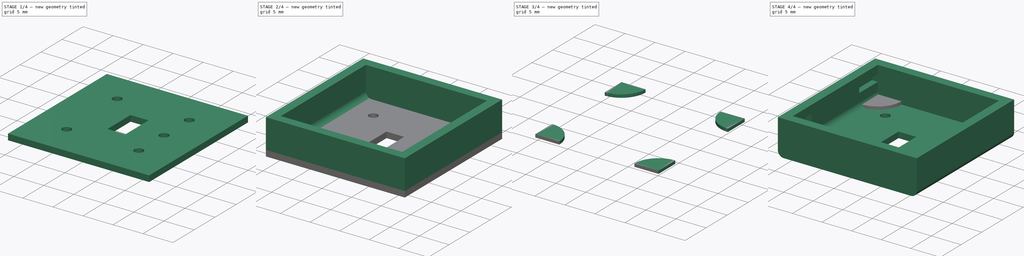
[diagram: build sequence overview — one tinted view per stage of 4, left to right]
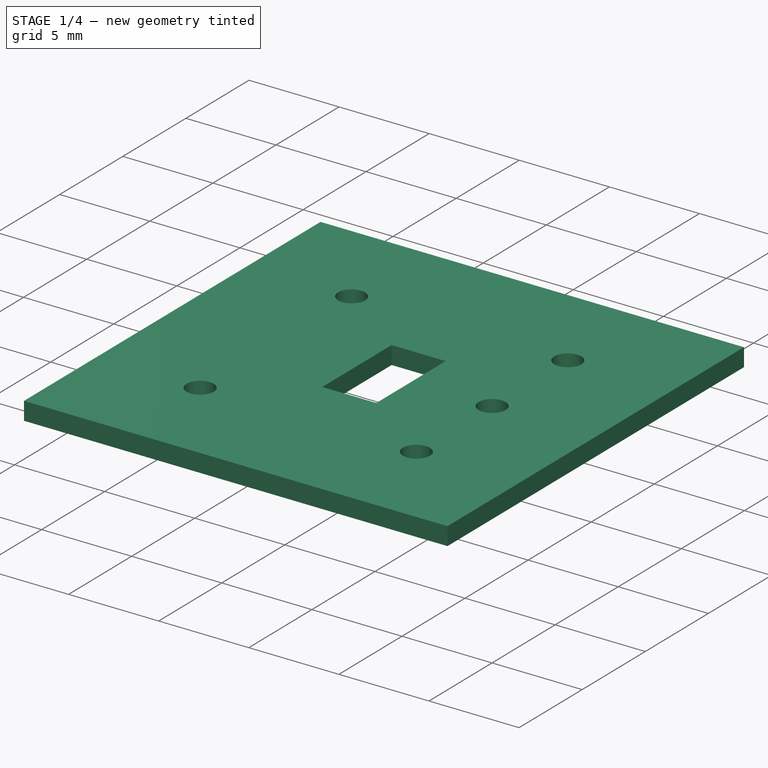
[diagram: stage 1 of 4 — iso view after this stage's code; geometry added in this stage tinted green]
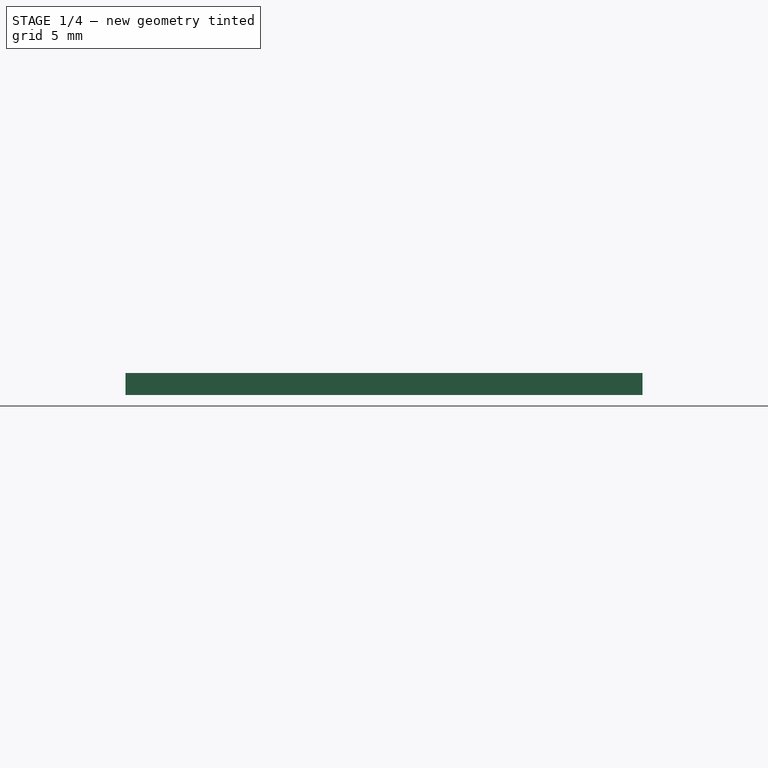
[diagram: stage 1 of 4 — front view after this stage's code; geometry added in this stage tinted green]
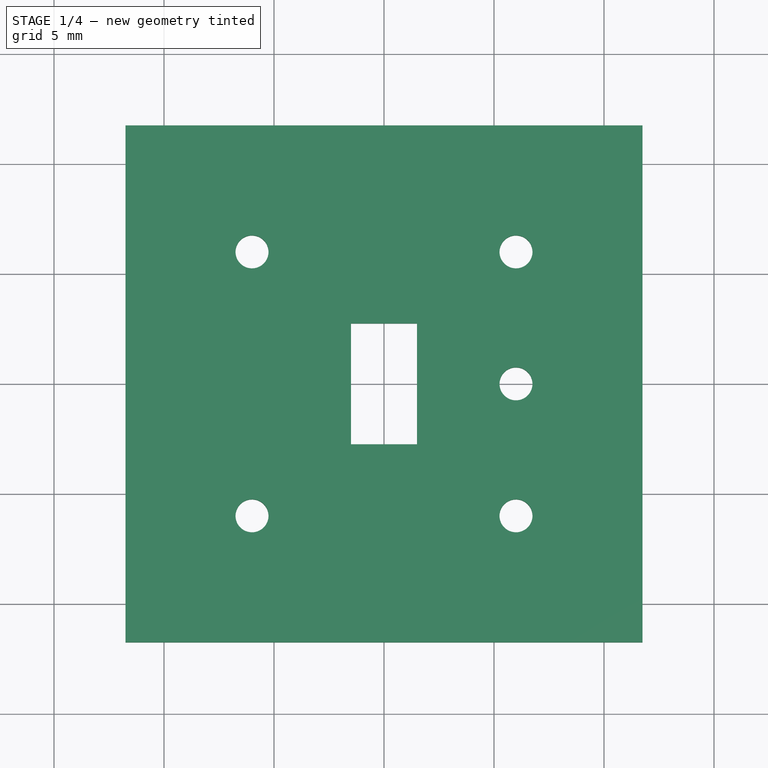
[diagram: stage 1 of 4 — top view after this stage's code; geometry added in this stage tinted green]
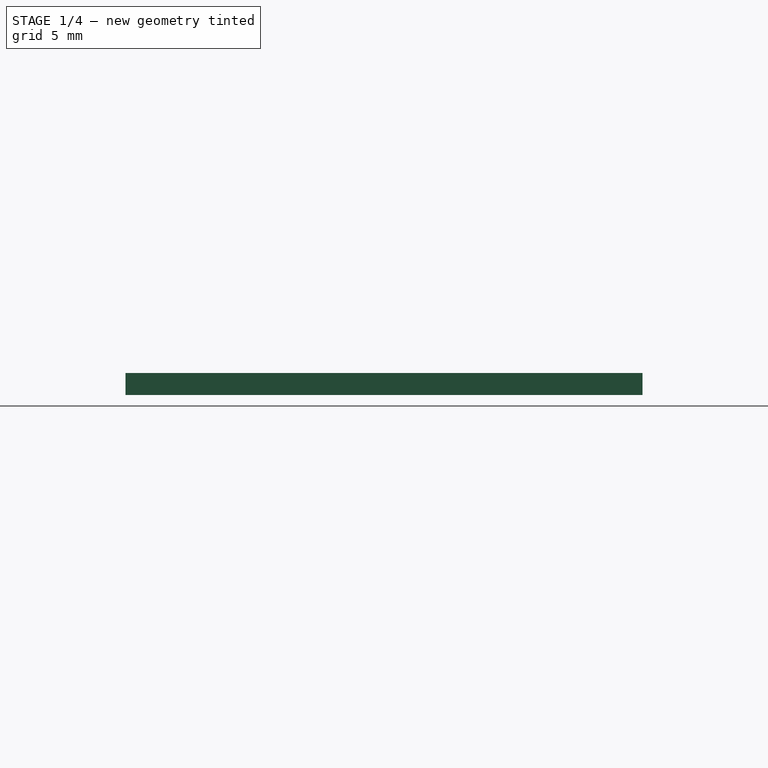
[diagram: stage 1 of 4 — right view after this stage's code; geometry added in this stage tinted green]
FCSTD DOCUMENT  (FreeCAD 0.19R24267 +99 (Git))
Label: LEGO_Laser_Top_V2
License: All rights reserved
LicenseURL: http://en.wikipedia.org/wiki/All_rights_reserved
objects: Sketcher::SketchObject×5, Part::Extrusion×5, Part::Cut×2, Part::MultiFuse×2, Part::Fillet×2
note: 16 computed .brp shape members not serialized (recipe doc carries the construction recipe); baked Part::Feature solids carry a one-line shape summary decoded from their .brp

FEATURE [Sketcher::SketchObject] Sketch
  FullyConstrained = true
  sketch-geometry (12):
    g0: LineSegment StartX=-11.75 StartY=-11.75 StartZ=0 EndX=11.75 EndY=-11.75 EndZ=0
    g1: LineSegment StartX=11.75 StartY=-11.75 StartZ=0 EndX=11.75 EndY=11.75 EndZ=0
    g2: LineSegment StartX=11.75 StartY=11.75 StartZ=0 EndX=-11.75 EndY=11.75 EndZ=0
    g3: LineSegment StartX=-11.75 StartY=11.75 StartZ=0 EndX=-11.75 EndY=-11.75 EndZ=0
    g4: GeomPoint X=0 Y=11.75 Z=0
    g5: GeomPoint X=-11.75 Y=0 Z=0
    g6: LineSegment StartX=-1.5 StartY=2.75 StartZ=0 EndX=1.5 EndY=2.75 EndZ=0
    g7: LineSegment StartX=1.5 StartY=2.75 StartZ=0 EndX=1.5 EndY=-2.75 EndZ=0
    g8: LineSegment StartX=1.5 StartY=-2.75 StartZ=0 EndX=-1.5 EndY=-2.75 EndZ=0
    g9: LineSegment StartX=-1.5 StartY=-2.75 StartZ=0 EndX=-1.5 EndY=2.75 EndZ=0
    g10: GeomPoint X=0 Y=2.75 Z=0
    g11: GeomPoint X=-1.5 Y=0 Z=0
  constraints (28):
    c: Coincident(g0,g1)
    c: Coincident(g1,g2)
    c: Coincident(g2,g3)
    c: Coincident(g3,g0)
    c: Horizontal(g0)
    c: Horizontal(g2)
    c: Vertical(g1)
    c: Vertical(g3)
    c: Symmetric(g3,g3,g5)
    c: Symmetric(g2,g2,g4)
    c: PointOnObject(g4,g-2)
    c: PointOnObject(g5,g-1)
    c: DistanceX(g2,g2) = 23.5
    c: DistanceY(g3,g3) = 23.5
    c: Coincident(g6,g7)
    c: Coincident(g7,g8)
    c: Coincident(g8,g9)
    c: Coincident(g9,g6)
    c: Horizontal(g6)
    c: Horizontal(g8)
    c: Vertical(g7)
    c: Vertical(g9)
    c: DistanceX(g6,g6) = 3
    c: DistanceY(g9,g9) = 5.5
    c: Symmetric(g9,g9,g11)
    c: Symmetric(g6,g6,g10)
    c: PointOnObject(g10,g-2)
    c: PointOnObject(g11,g-1)
FEATURE [Part::Extrusion] Extrude
  Base = -> Sketch
  Dir = (0,0,1)
  DirMode = 2
  FaceMakerClass = Part::FaceMakerBullseye
  LengthFwd = 1
  LengthRev = 0
  Solid = true
  Symmetric = false
FEATURE [Sketcher::SketchObject] Sketch002
  ExternalGeometry = -> [Extrude]
  FullyConstrained = true
  sketch-geometry (5):
    g0: Circle CenterX=-6 CenterY=6 CenterZ=0 NormalX=0 NormalY=0 NormalZ=1 AngleXU=0 Radius=0.75
    g1: Circle CenterX=6 CenterY=6 CenterZ=0 NormalX=0 NormalY=0 NormalZ=1 AngleXU=0 Radius=0.75
    g2: Circle CenterX=6 CenterY=-6 CenterZ=0 NormalX=0 NormalY=0 NormalZ=1 AngleXU=0 Radius=0.75
    g3: Circle CenterX=-6 CenterY=-6 CenterZ=0 NormalX=0 NormalY=0 NormalZ=1 AngleXU=0 Radius=0.75
    g4: Circle CenterX=6 CenterY=0 CenterZ=0 NormalX=0 NormalY=0 NormalZ=1 AngleXU=0 Radius=0.75
  constraints (15):
    c: Equal(g1,g0)
    c: Equal(g1,g3)
    c: Equal(g1,g2)
    c: Radius(g1) = 0.75
    c: Horizontal(g1,g0)
    c: Horizontal(g3,g2)
    c: Vertical(g3,g0)
    c: Vertical(g2,g1)
    c: DistanceY(g0,g-5) = 5.75
    c: DistanceX(g-5,g0) = 5.75
    c: DistanceX(g2,g-6) = 5.75
    c: DistanceY(g-6,g2) = 5.75
    c: PointOnObject(g4,g-1)
    c: Equal(g0,g4)
    c: Vertical(g4,g1)
FEATURE [Part::Extrusion] Extrude002
  Base = -> Sketch002
  Dir = (0,0,1)
  DirMode = 2
  FaceMakerClass = Part::FaceMakerBullseye
  LengthFwd = 2
  LengthRev = 0
  Solid = true
  Symmetric = false
FEATURE [Part::Cut] Cut
  Base = -> Extrude
  Tool = -> Extrude002
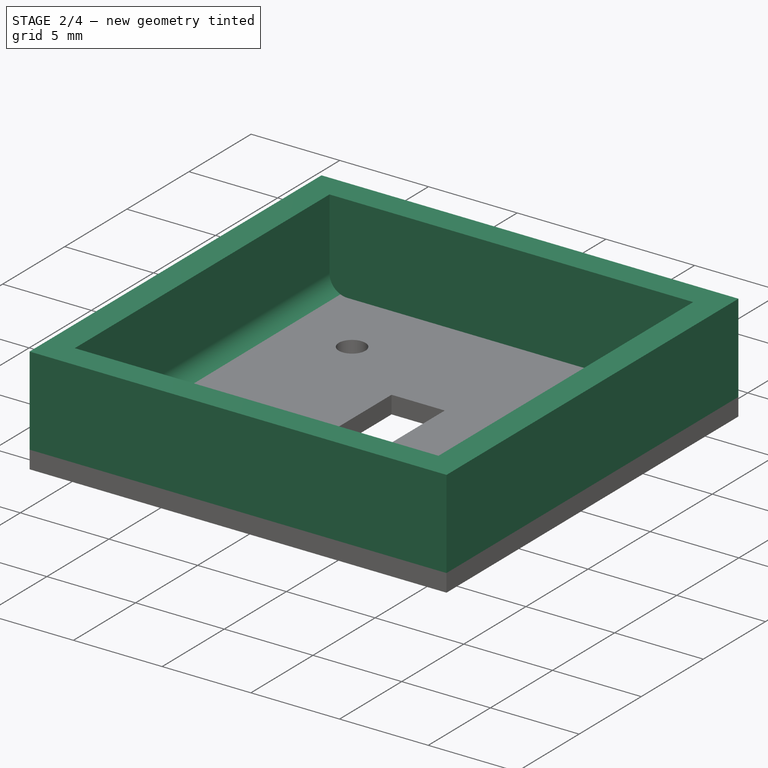
[diagram: stage 2 of 4 — iso view after this stage's code; geometry added in this stage tinted green]
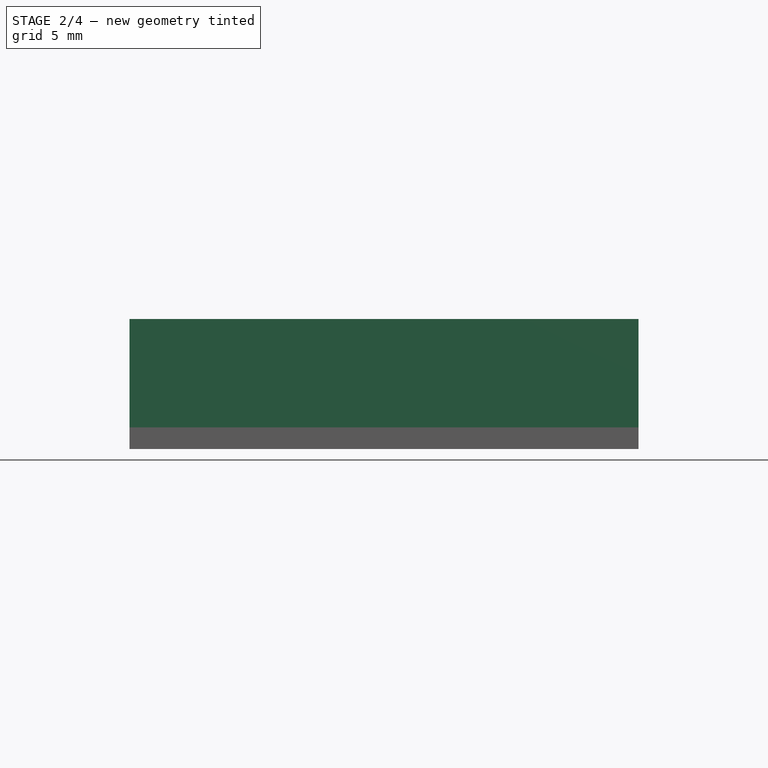
[diagram: stage 2 of 4 — front view after this stage's code; geometry added in this stage tinted green]
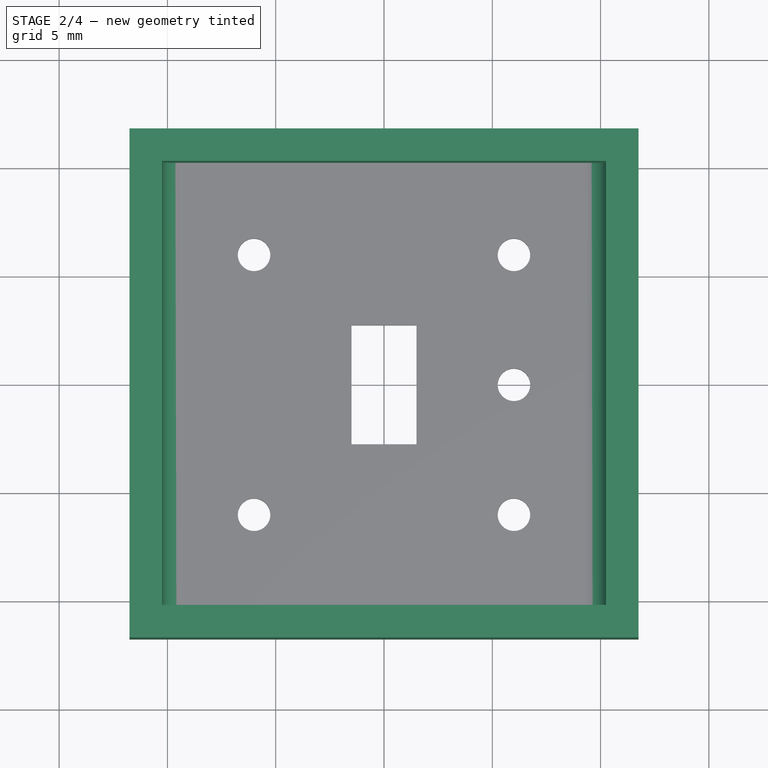
[diagram: stage 2 of 4 — top view after this stage's code; geometry added in this stage tinted green]
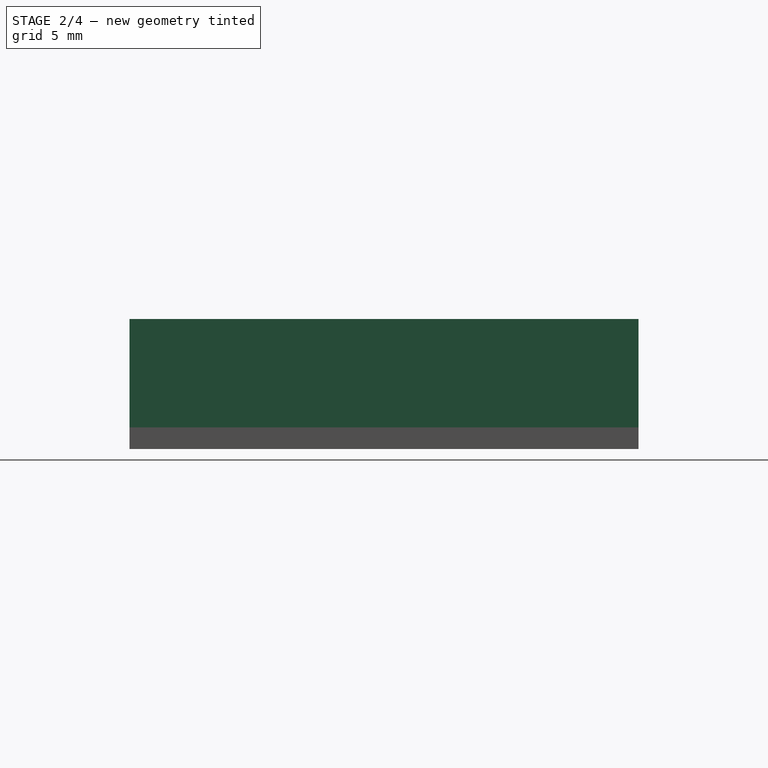
[diagram: stage 2 of 4 — right view after this stage's code; geometry added in this stage tinted green]
FEATURE [Sketcher::SketchObject] Sketch001
  ExternalGeometry = -> [Extrude]
  FullyConstrained = true
  MapMode = 5
  Placement = pos=(0,0,1) rot=(0,0,1;0rad)
  Support = -> [Extrude]
  sketch-geometry (8):
    g0: LineSegment StartX=-11.75 StartY=-11.75 StartZ=0 EndX=11.75 EndY=-11.75 EndZ=0
    g1: LineSegment StartX=11.75 StartY=-11.75 StartZ=0 EndX=11.75 EndY=11.75 EndZ=0
    g2: LineSegment StartX=11.75 StartY=11.75 StartZ=0 EndX=-11.75 EndY=11.75 EndZ=0
    g3: LineSegment StartX=-11.75 StartY=11.75 StartZ=0 EndX=-11.75 EndY=-11.75 EndZ=0
    g4: LineSegment StartX=-10.25 StartY=-10.25 StartZ=0 EndX=10.25 EndY=-10.25 EndZ=0
    g5: LineSegment StartX=10.25 StartY=-10.25 StartZ=0 EndX=10.25 EndY=10.25 EndZ=0
    g6: LineSegment StartX=10.25 StartY=10.25 StartZ=0 EndX=-10.25 EndY=10.25 EndZ=0
    g7: LineSegment StartX=-10.25 StartY=10.25 StartZ=0 EndX=-10.25 EndY=-10.25 EndZ=0
  constraints (22):
    c: Coincident(g0,g1)
    c: Coincident(g1,g2)
    c: Coincident(g2,g3)
    c: Coincident(g3,g0)
    c: Horizontal(g0)
    c: Horizontal(g2)
    c: Vertical(g1)
    c: Vertical(g3)
    c: Coincident(g0,g-6)
    c: Coincident(g1,g-4)
    c: Coincident(g4,g5)
    c: Coincident(g5,g6)
    c: Coincident(g6,g7)
    c: Coincident(g7,g4)
    c: Horizontal(g4)
    c: Horizontal(g6)
    c: Vertical(g5)
    c: Vertical(g7)
    c: DistanceX(g5,g1) = 1.5
    c: DistanceY(g5,g1) = 1.5
    c: DistanceX(g0,g4) = 1.5
    c: DistanceY(g0,g4) = 1.5
FEATURE [Part::Extrusion] Extrude001
  Base = -> Sketch001
  Dir = (0,0,1)
  DirMode = 2
  FaceMakerClass = Part::FaceMakerBullseye
  LengthFwd = 5
  LengthRev = 0
  Solid = true
  Symmetric = false
FEATURE [Part::MultiFuse] Fusion
  Shapes = -> [Cut,Extrude001]
FEATURE [Part::Fillet] Fillet
  Base = -> Fusion
  Edges = 2 edges r=1: [Edge38,Edge41]
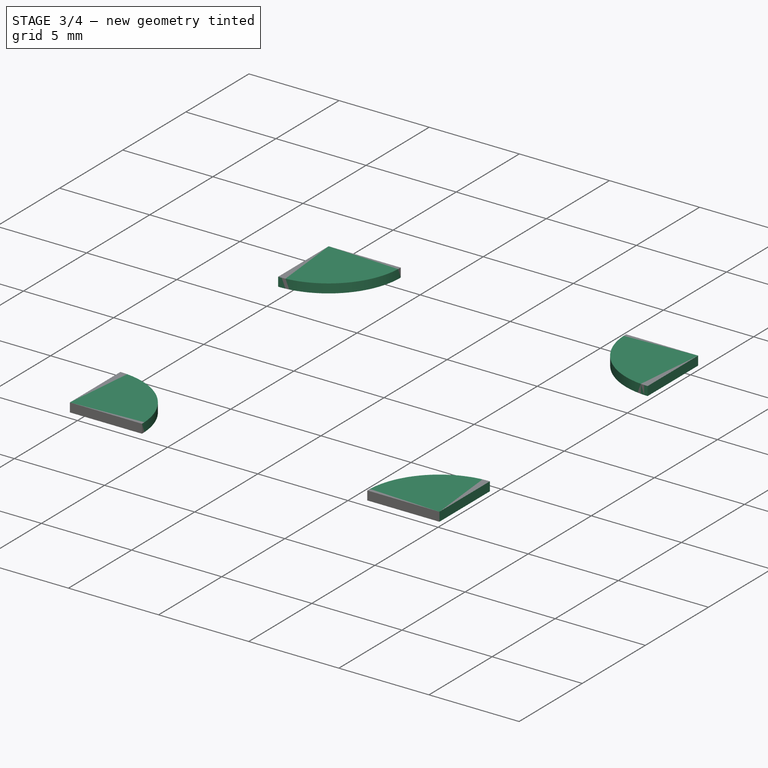
[diagram: stage 3 of 4 — iso view after this stage's code; geometry added in this stage tinted green]
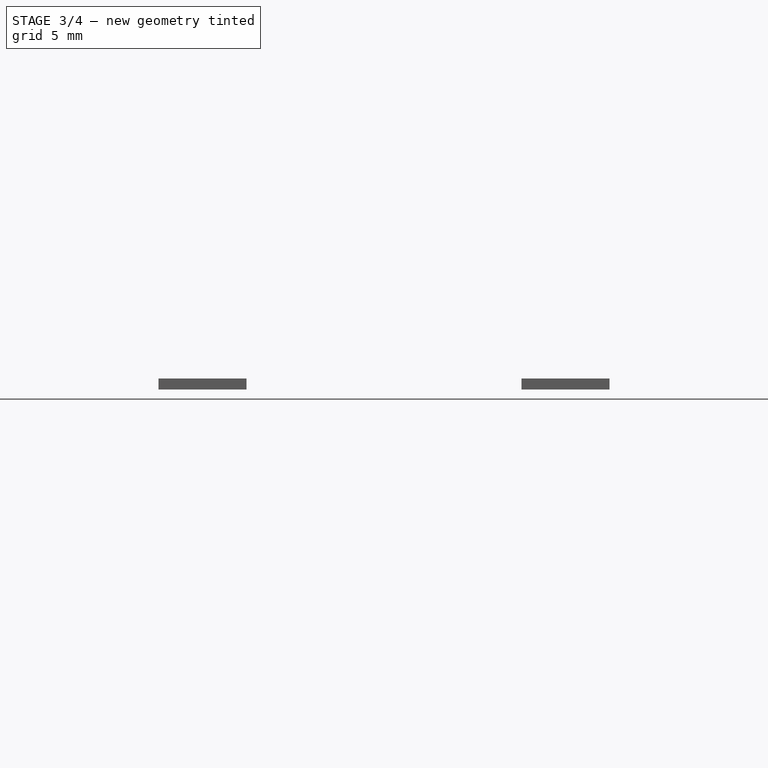
[diagram: stage 3 of 4 — front view after this stage's code; geometry added in this stage tinted green]
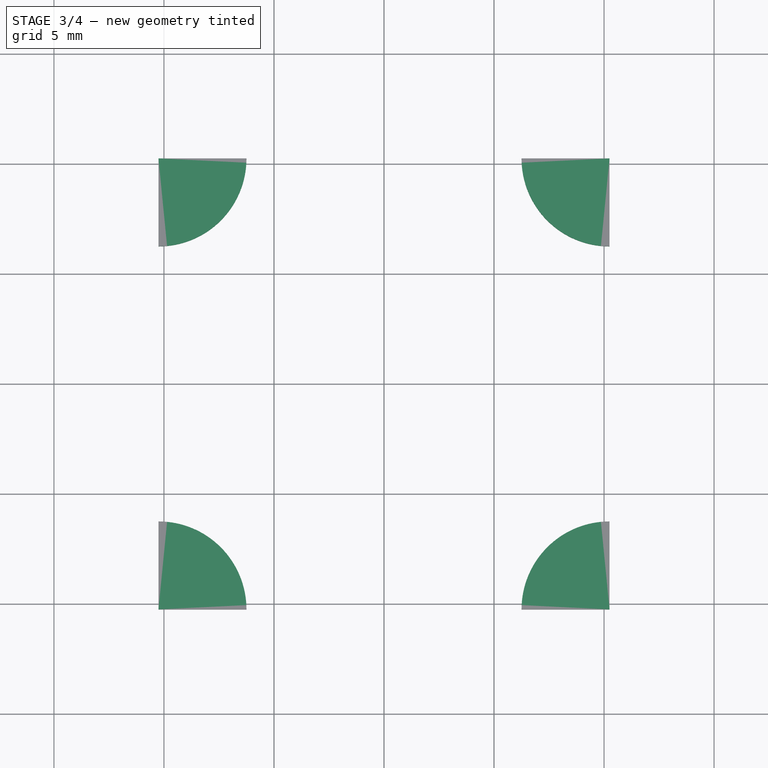
[diagram: stage 3 of 4 — top view after this stage's code; geometry added in this stage tinted green]
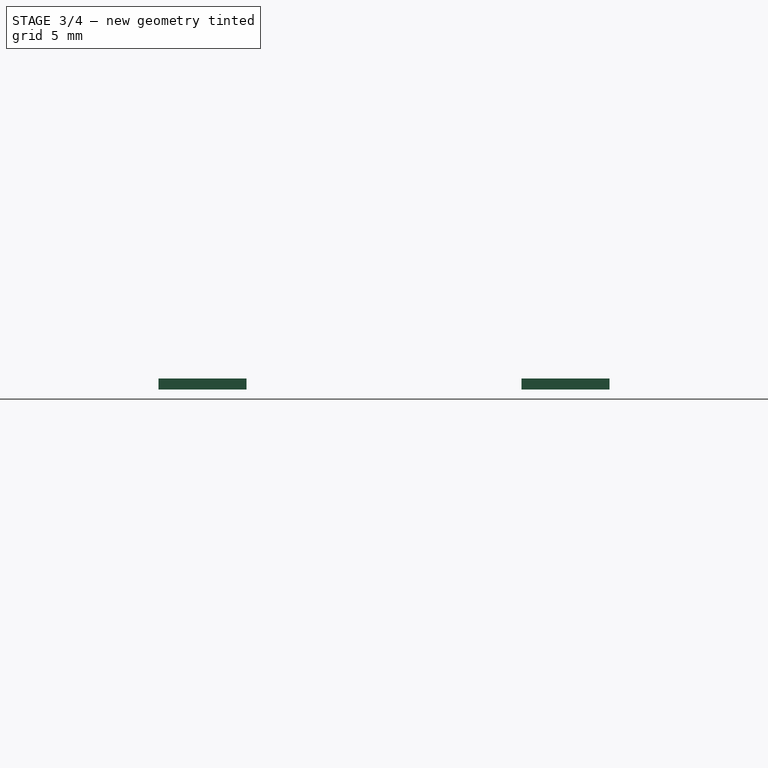
[diagram: stage 3 of 4 — right view after this stage's code; geometry added in this stage tinted green]
FEATURE [Part::Fillet] Fillet001
  Base = -> Fillet
  Edges = 2 edges r=0.99: [Edge62,Edge65]
FEATURE [Sketcher::SketchObject] Sketch003
  ExternalGeometry = -> [Fillet001]
  FullyConstrained = true
  MapMode = 5
  Placement = pos=(0,0,1) rot=(0,0,1;0rad)
  Support = -> [Fillet001]
  sketch-geometry (12):
    g0: ArcOfCircle CenterX=-10.25 CenterY=-10.25 CenterZ=0 NormalX=0 NormalY=0 NormalZ=1 AngleXU=0 Radius=4 StartAngle=1e-16 EndAngle=1.5708
    g1: LineSegment StartX=-10.25 StartY=-6.25 StartZ=0 EndX=-10.25 EndY=-10.25 EndZ=0
    g2: LineSegment StartX=-6.25 StartY=-10.25 StartZ=0 EndX=-10.25 EndY=-10.25 EndZ=0
    g3: ArcOfCircle CenterX=-10.25 CenterY=10.25 CenterZ=0 NormalX=0 NormalY=0 NormalZ=1 AngleXU=0 Radius=4 StartAngle=4.71239 EndAngle=6.28319
    g4: ArcOfCircle CenterX=10.25 CenterY=10.25 CenterZ=0 NormalX=0 NormalY=0 NormalZ=1 AngleXU=0 Radius=4 StartAngle=3.14159 EndAngle=4.71239
    g5: ArcOfCircle CenterX=10.25 CenterY=-10.25 CenterZ=0 NormalX=0 NormalY=0 NormalZ=1 AngleXU=0 Radius=4 StartAngle=1.5708 EndAngle=3.14159
    g6: LineSegment StartX=-10.25 StartY=6.25 StartZ=0 EndX=-10.25 EndY=10.25 EndZ=0
    g7: LineSegment StartX=-10.25 StartY=10.25 StartZ=0 EndX=-6.25 EndY=10.25 EndZ=0
    g8: LineSegment StartX=6.25 StartY=10.25 StartZ=0 EndX=10.25 EndY=10.25 EndZ=0
    g9: LineSegment StartX=10.25 StartY=10.25 StartZ=0 EndX=10.25 EndY=6.25 EndZ=0
    g10: LineSegment StartX=10.25 StartY=-6.25 StartZ=0 EndX=10.25 EndY=-10.25 EndZ=0
    g11: LineSegment StartX=6.25 StartY=-10.25 StartZ=0 EndX=10.25 EndY=-10.25 EndZ=0
  constraints (32):
    c: Coincident(g0,g-6)
    c: PointOnObject(g0,g-3)
    c: PointOnObject(g0,g-6)
    c: Radius(g0) = 4
    c: Coincident(g1,g0)
    c: Coincident(g1,g0)
    c: Coincident(g2,g0)
    c: Coincident(g2,g0)
    c: Coincident(g3,g-4)
    c: PointOnObject(g3,g-4)
    c: PointOnObject(g3,g-3)
    c: Coincident(g4,g-5)
    c: PointOnObject(g4,g-5)
    c: PointOnObject(g4,g-4)
    c: Coincident(g5,g-6)
    c: PointOnObject(g5,g-5)
    c: PointOnObject(g5,g-6)
    c: Equal(g0,g5)
    c: Equal(g5,g4)
    c: Equal(g4,g3)
    c: Coincident(g6,g3)
    c: Coincident(g6,g3)
    c: Coincident(g7,g3)
    c: Coincident(g7,g3)
    c: Coincident(g8,g4)
    c: Coincident(g8,g4)
    c: Coincident(g9,g4)
    c: Coincident(g9,g4)
    c: Coincident(g10,g5)
    c: Coincident(g10,g5)
    c: Coincident(g11,g5)
    c: Coincident(g11,g5)
FEATURE [Part::Extrusion] Extrude003
  Base = -> Sketch003
  Dir = (0,0,1)
  DirMode = 2
  FaceMakerClass = Part::FaceMakerBullseye
  LengthFwd = 0.5
  LengthRev = 0
  Solid = true
  Symmetric = false
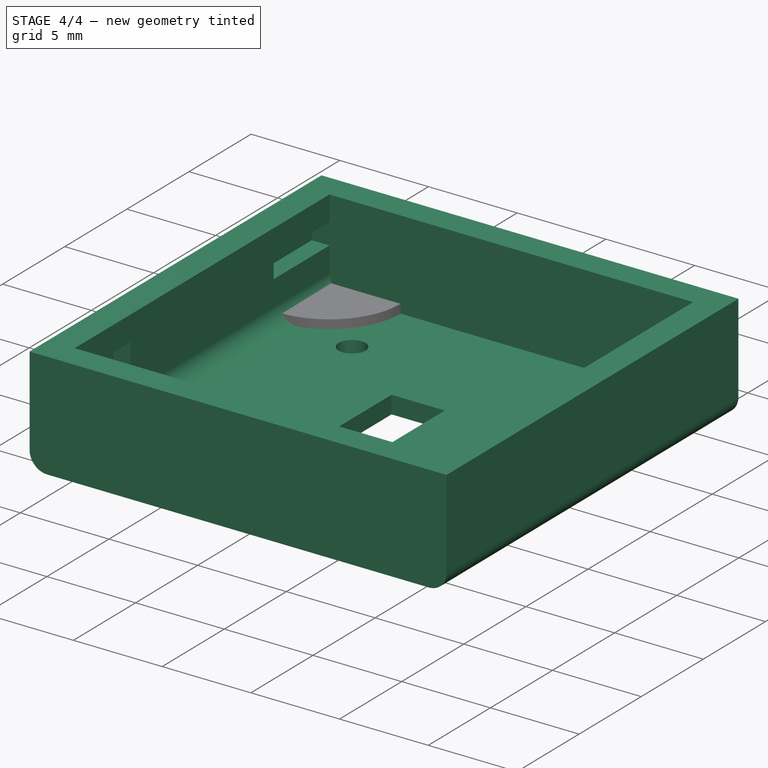
[diagram: stage 4 of 4 — iso view after this stage's code; geometry added in this stage tinted green]
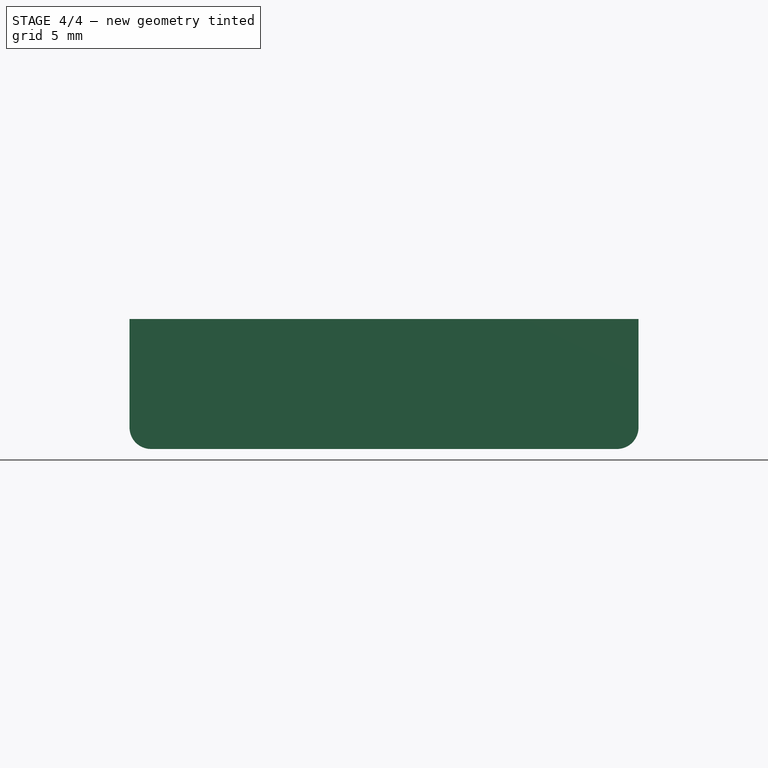
[diagram: stage 4 of 4 — front view after this stage's code; geometry added in this stage tinted green]
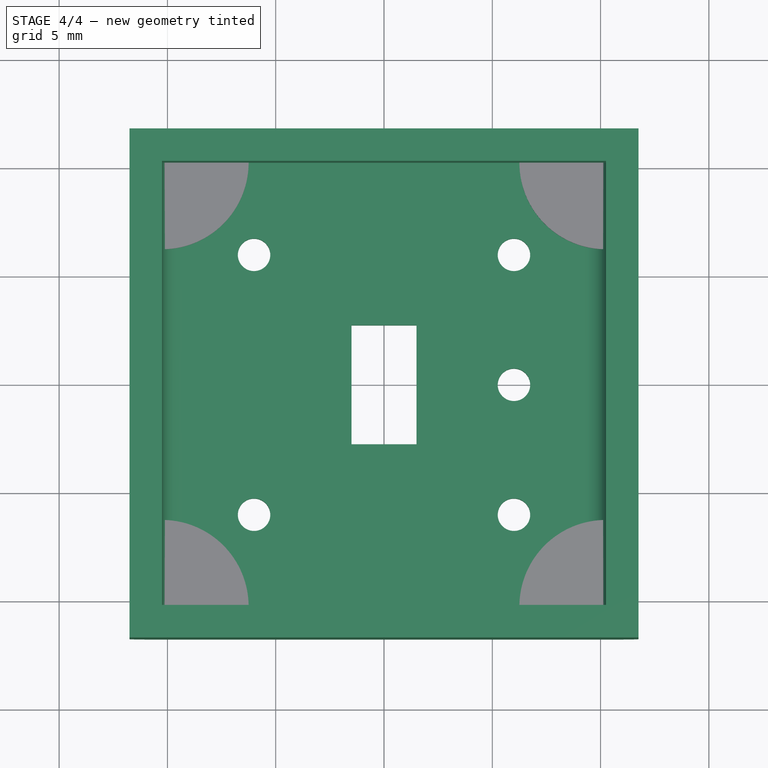
[diagram: stage 4 of 4 — top view after this stage's code; geometry added in this stage tinted green]
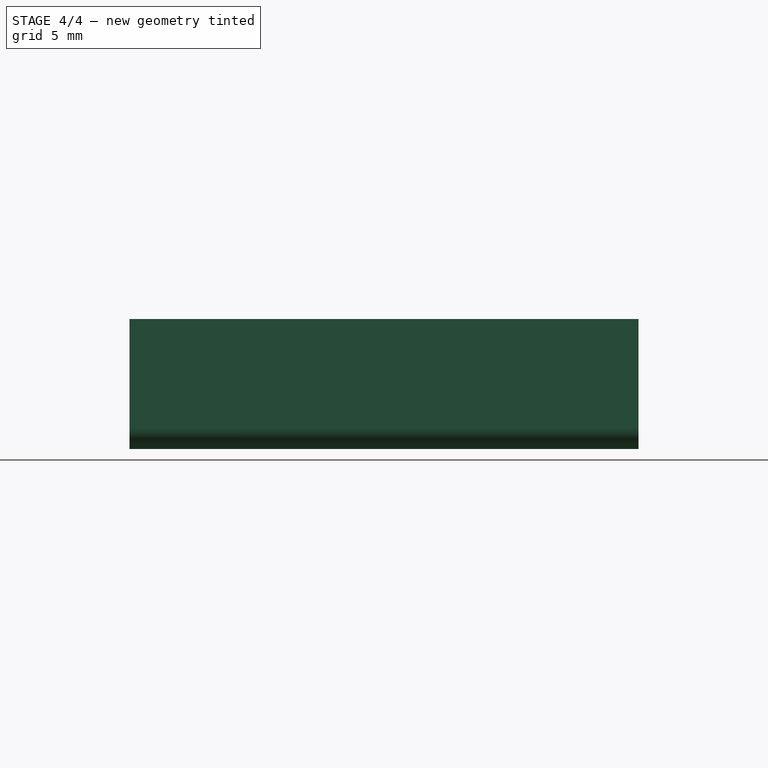
[diagram: stage 4 of 4 — right view after this stage's code; geometry added in this stage tinted green]
FEATURE [Part::MultiFuse] Fusion001
  Shapes = -> [Fillet001,Extrude003]
FEATURE [Sketcher::SketchObject] Sketch005
  ExternalGeometry = -> [Fusion001]
  FullyConstrained = true
  MapMode = 5
  Placement = pos=(10.25,0,0) rot=(0.57735,-0.57735,-0.57735;2.0944rad)
  Support = -> [Fusion001]
  sketch-geometry (8):
    g0: LineSegment StartX=10.25 StartY=4.6 StartZ=0 EndX=5.75 EndY=4.6 EndZ=0
    g1: LineSegment StartX=5.75 StartY=4.6 StartZ=0 EndX=5.75 EndY=3.4 EndZ=0
    g2: LineSegment StartX=5.75 StartY=3.4 StartZ=0 EndX=10.25 EndY=3.4 EndZ=0
    g3: LineSegment StartX=10.25 StartY=3.4 StartZ=0 EndX=10.25 EndY=4.6 EndZ=0
    g4: LineSegment StartX=-5.75 StartY=4.6 StartZ=0 EndX=-10.25 EndY=4.6 EndZ=0
    g5: LineSegment StartX=-10.25 StartY=4.6 StartZ=0 EndX=-10.25 EndY=3.4 EndZ=0
    g6: LineSegment StartX=-10.25 StartY=3.4 StartZ=0 EndX=-5.75 EndY=3.4 EndZ=0
    g7: LineSegment StartX=-5.75 StartY=3.4 StartZ=0 EndX=-5.75 EndY=4.6 EndZ=0
  constraints (24):
    c: Coincident(g0,g1)
    c: Coincident(g1,g2)
    c: Coincident(g2,g3)
    c: Coincident(g3,g0)
    c: Horizontal(g0)
    c: Horizontal(g2)
    c: Vertical(g1)
    c: Vertical(g3)
    c: Coincident(g4,g5)
    c: Coincident(g5,g6)
    c: Coincident(g6,g7)
    c: Coincident(g7,g4)
    c: Horizontal(g4)
    c: Horizontal(g6)
    c: Vertical(g5)
    c: Vertical(g7)
    c: Equal(g4,g0)
    c: Equal(g7,g1)
    c: DistanceY(g7,g7) = 1.2
    c: DistanceX(g0,g0) = 4.5
    c: Horizontal(g1,g6)
    c: DistanceX(g6,g-1) = 5.75
    c: DistanceX(g-1,g1) = 5.75
    c: DistanceY(g0,g-5) = 1.4
FEATURE [Part::Extrusion] Extrude004
  Base = -> Sketch005
  Dir = (-1,0,0)
  DirMode = 2
  FaceMakerClass = Part::FaceMakerBullseye
  LengthFwd = 21.5
  LengthRev = 1
  Solid = true
  Symmetric = false
FEATURE [Part::Cut] Cut001
  Base = -> Fusion001
  Tool = -> Extrude004
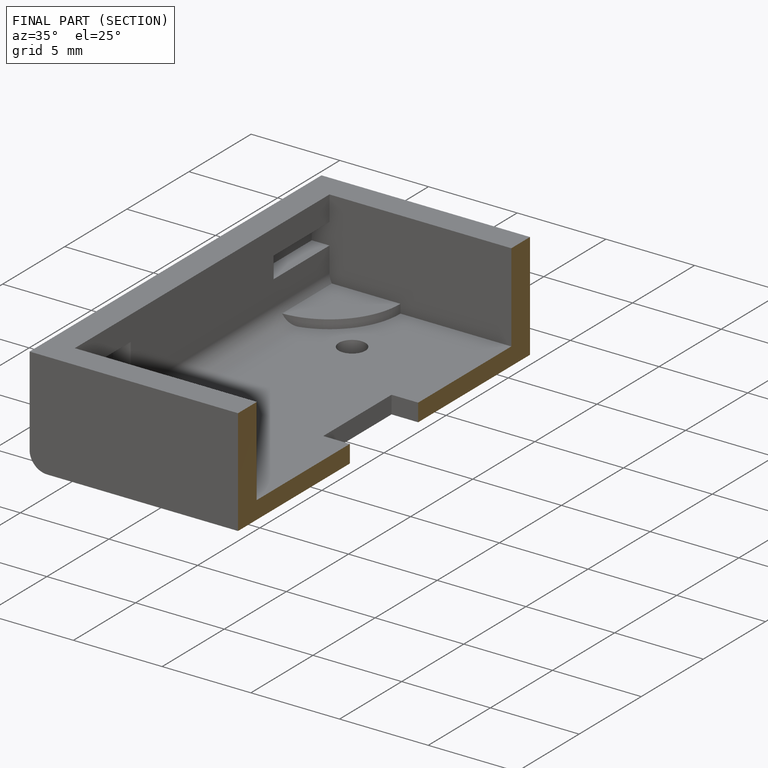
[diagram: finished part — half-section view (interior)]
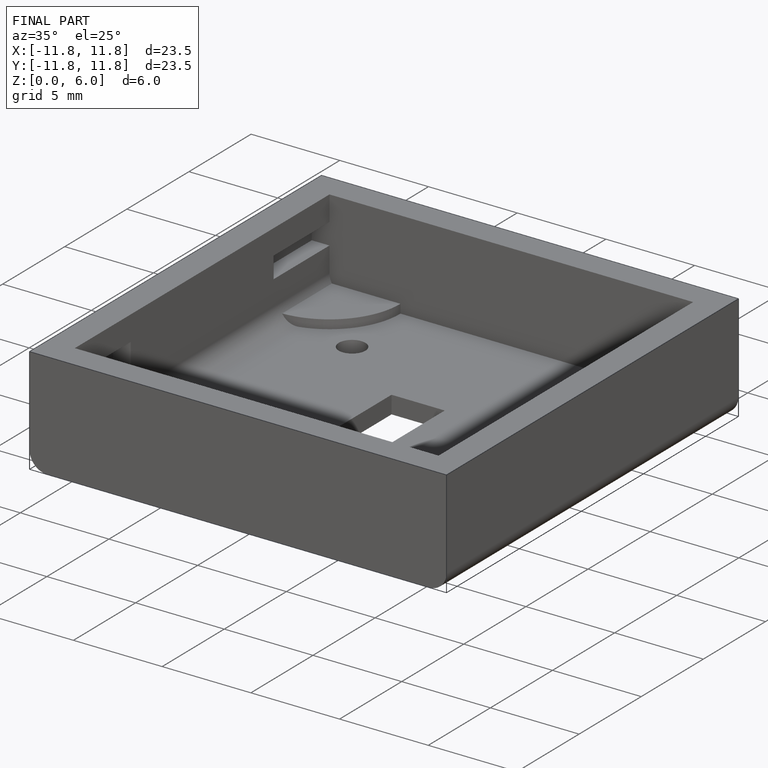
[diagram: finished part — iso view with bounding-box wireframe]
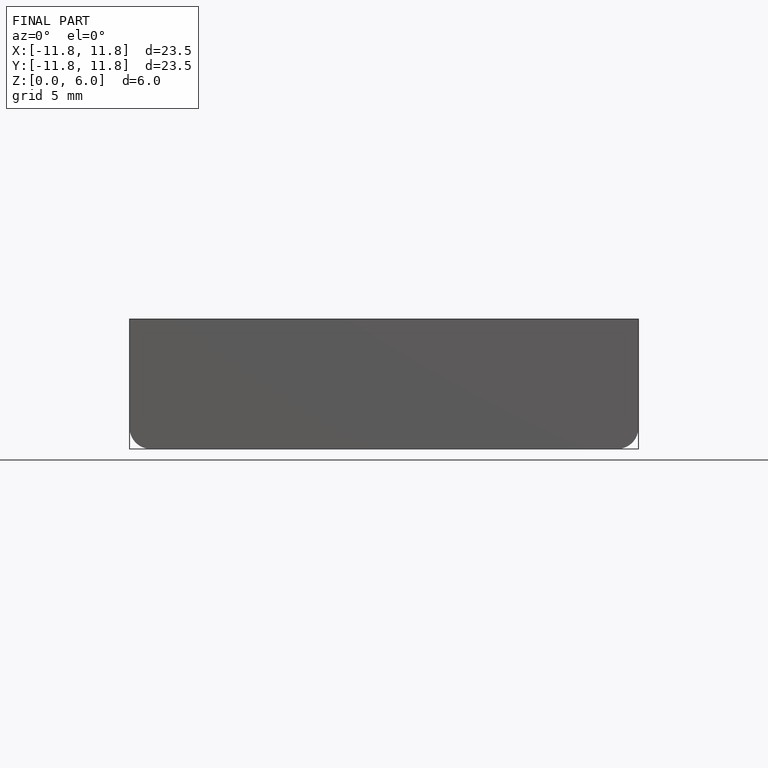
[diagram: finished part — front view with bounding-box wireframe]
